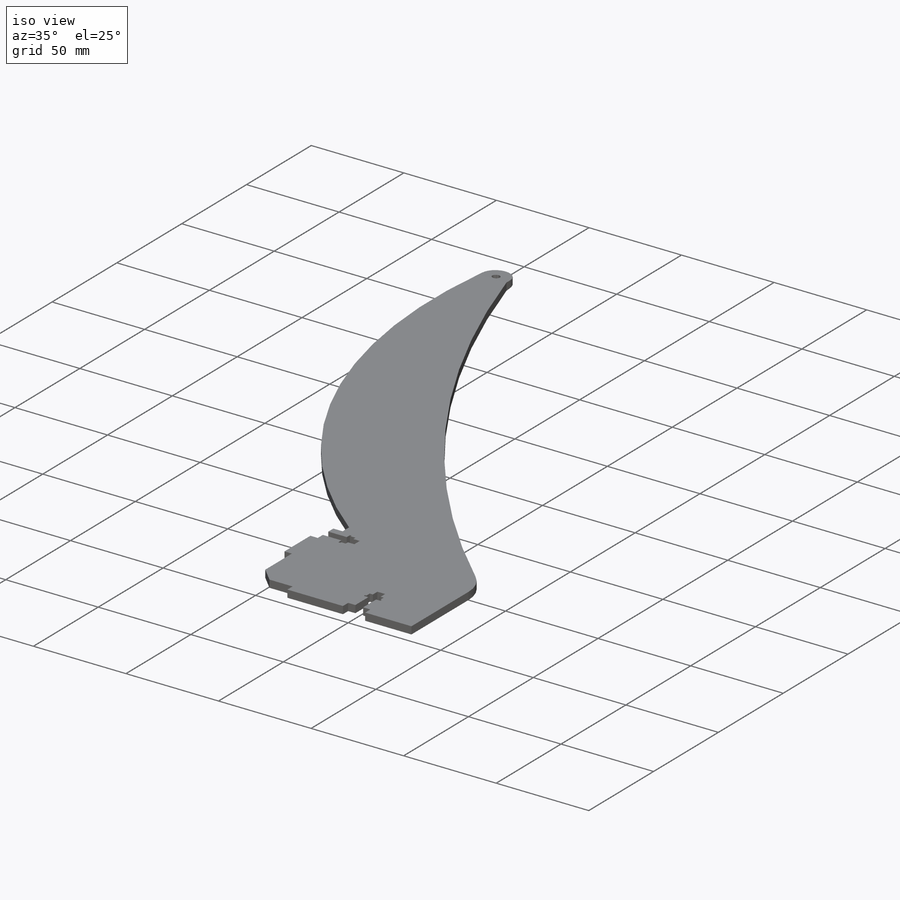
[diagram: iso view]
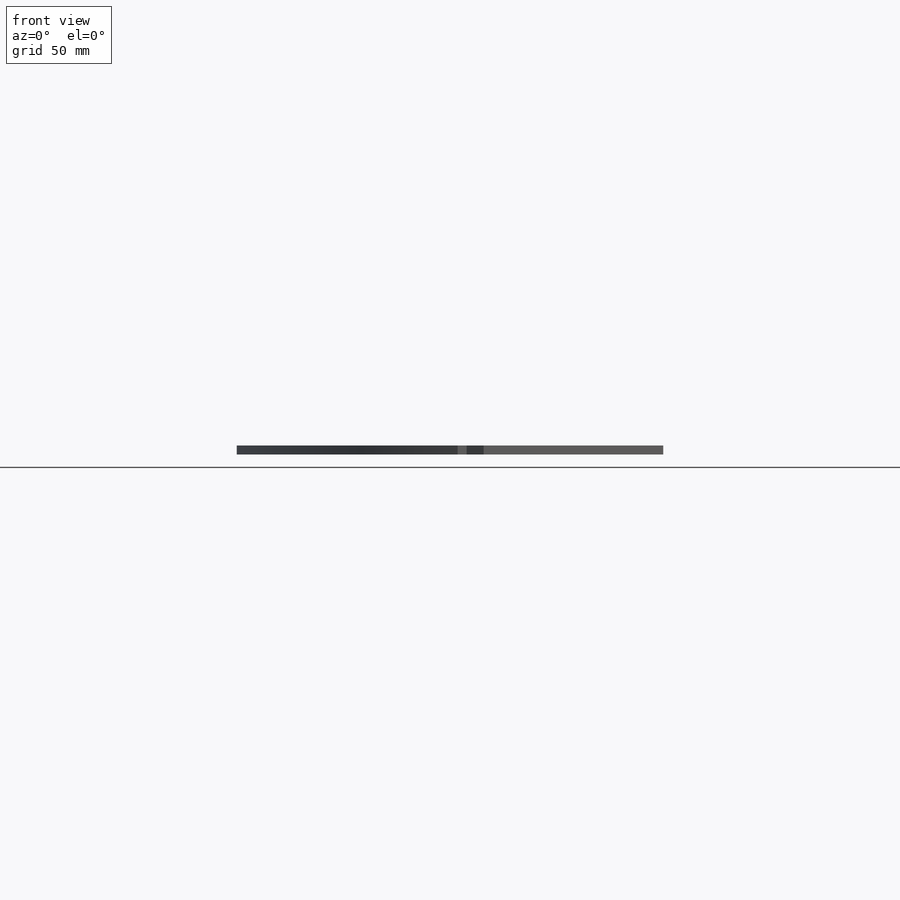
[diagram: front view]
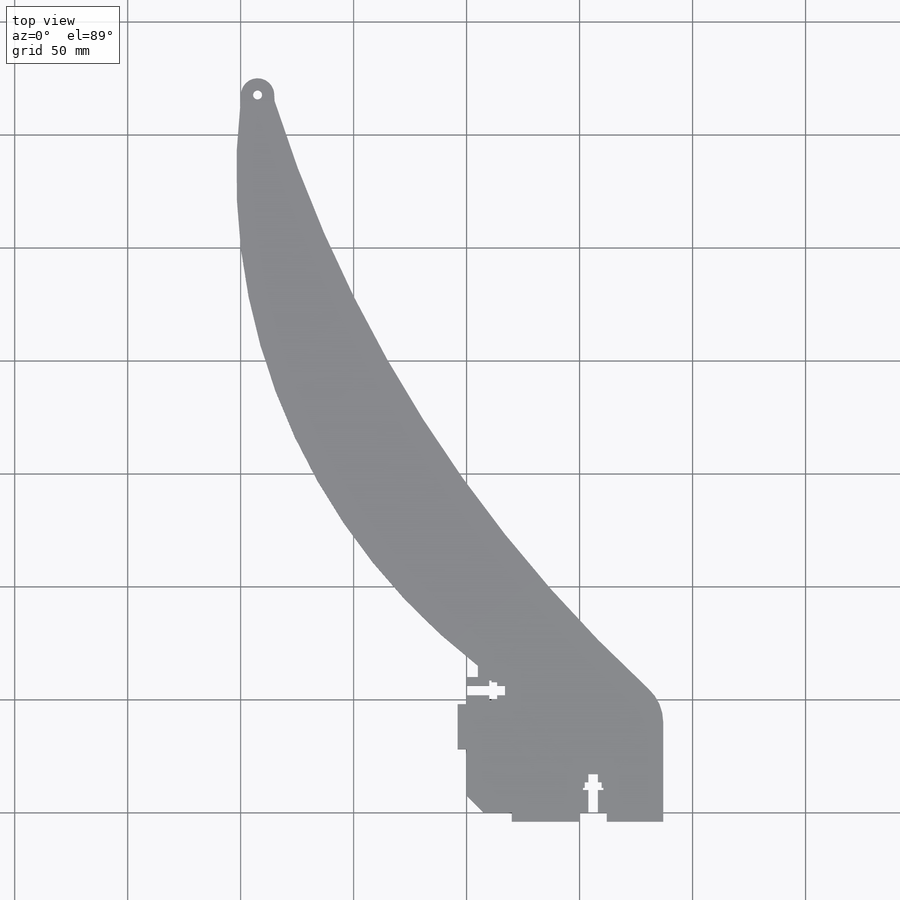
[diagram: top view]
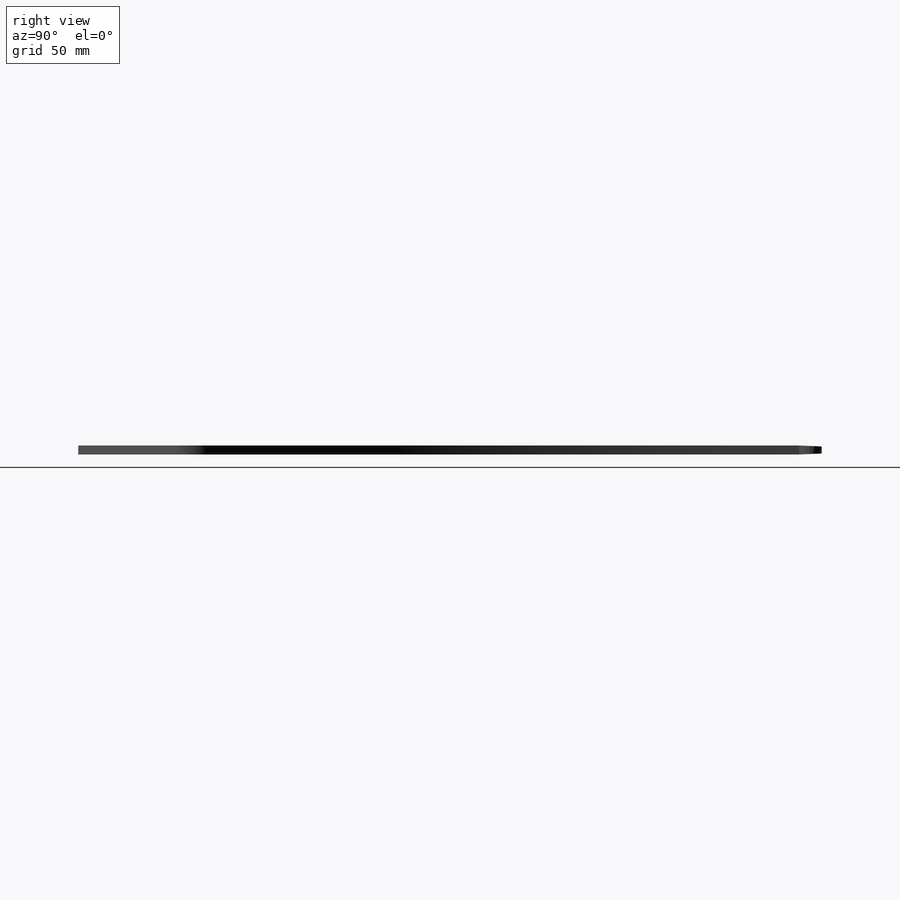
[diagram: right view]
SOLIDWORKS PART (.sldprt)
format: sldprt  version: not decoded by parser v0  size: 338,944 bytes
history: native  units: mm
features: sketch x4, extrude x2, cut_extrude x2, material x1, fillet x1, chamfer x1 (+11 scaffold rows collapsed)
feature tree (22):
  scaffold x11  (default folders/planes/origin — collapsed)
  material  "Material <not specified>"
  sketch  "Sketch1"  dims[c1.D12=20.0mm c1.D13=4.1mm c1.D14=275.0mm c1.D17=600.0mm c1.D1=87.0mm c1.D2=100.0mm c2.D1=87.0mm c2.D2=25.0mm c2.D3=12.0mm c2.D4=30.0mm c2.D5=4.0mm c2.D6=100.0mm c2.D7=28.0mm c2.D8=4.0mm c2.D9=20.0mm c2.D10=16.0mm c2.D11=40.0mm c2.D13=250.0mm c2.D15=15.0mm c2.D16=100.0mm c3.D10=12.0mm c3.D18=5.0mm c3.D19=5.0mm]
  extrude  "Boss-Extrude1"  Depth=4mm
  sketch  "Sketch3"
  extrude  "Boss-Extrude2"  Depth=10mm
  fillet  "Fillet1"  [1 undecoded]
  sketch  "Sketch4"  dims[D1=4.0mm]
  cut_extrude  "Cut-Extrude1"  [1 undecoded]
  sketch  "Sketch5"  dims[c1.D1=4.2mm c1.D2=13.0mm c1.D3=7.0mm c1.D4=3.5mm c1.D5=4.2mm c1.D6=13.0mm c1.D7=7.0mm c1.D8=3.5mm c1.D9=6.0mm c2.D5=4.2mm c2.D10=7.0mm c2.D2=4.2mm c2.D3=17.0mm c2.D4=7.5mm c2.D11=2.5mm c2.D12=9.0mm c2.D13=1.0mm c2.D14=10.0mm c3.D5=4.2mm c3.D6=17.0mm c3.D7=7.5mm c3.D8=2.5mm c3.D9=9.0mm c3.D10=1.0mm c3.D15=10.0mm c3.D16=6.0mm]
  cut_extrude  "Cut-Extrude2"  Depth=10mm
  chamfer  "Chamfer1"  Distance=7.5mm Angle=45deg
decode coverage: 7 of 10 modeling features carry decoded parameters
note: 2 parameter values undecoded
note: suppression state not decoded; provenance and decode notes live in map.json
